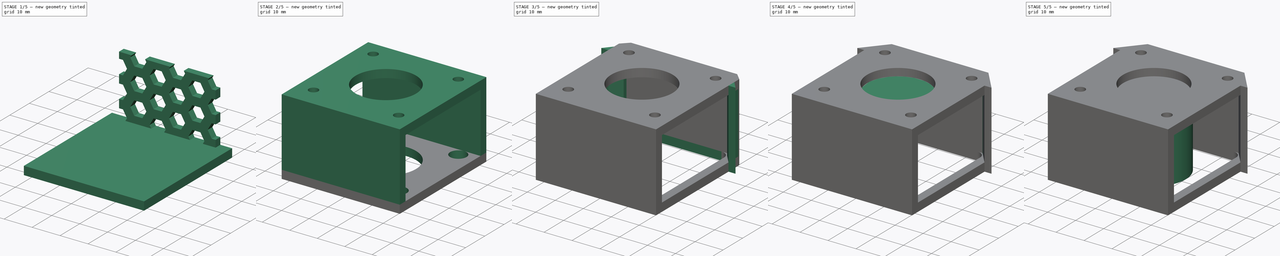
[diagram: build sequence overview — one tinted view per stage of 5, left to right]
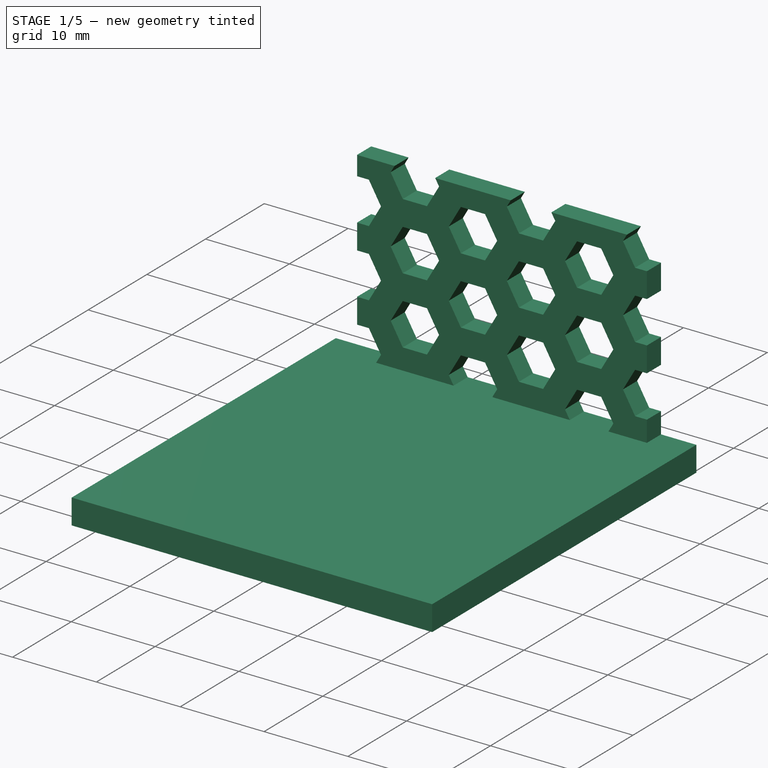
[diagram: stage 1 of 5 — iso view after this stage's code; geometry added in this stage tinted green]
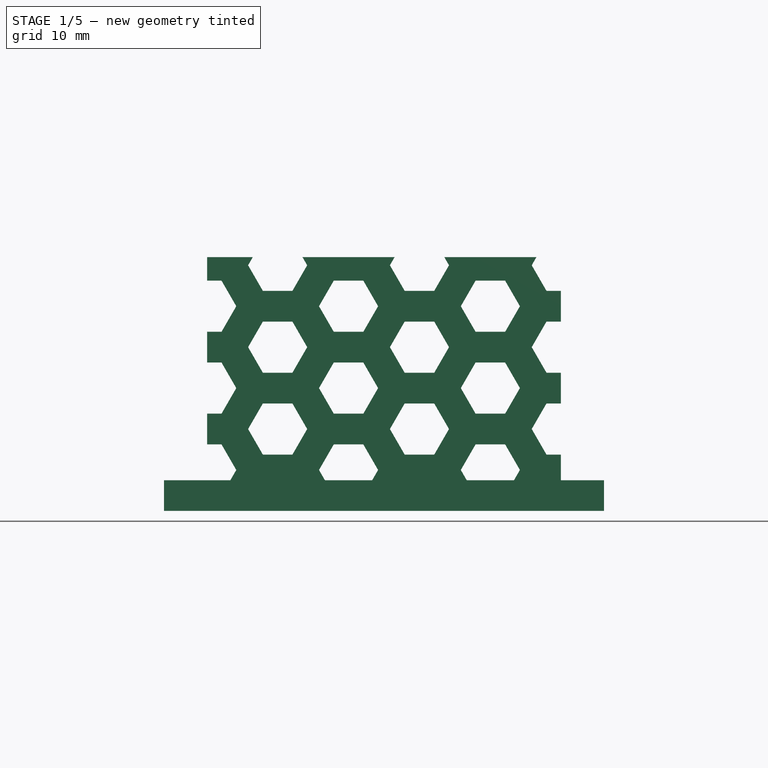
[diagram: stage 1 of 5 — front view after this stage's code; geometry added in this stage tinted green]
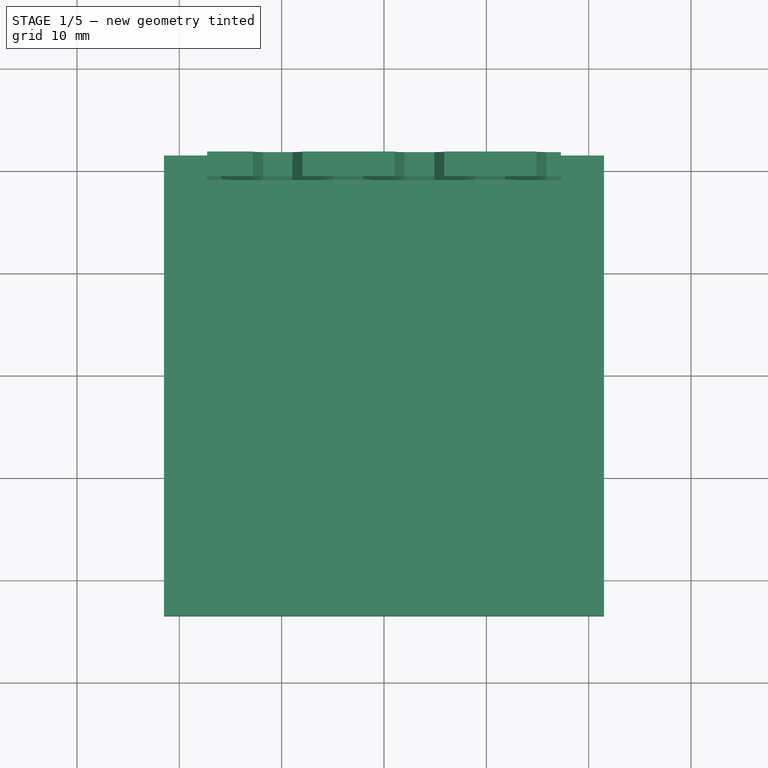
[diagram: stage 1 of 5 — top view after this stage's code; geometry added in this stage tinted green]
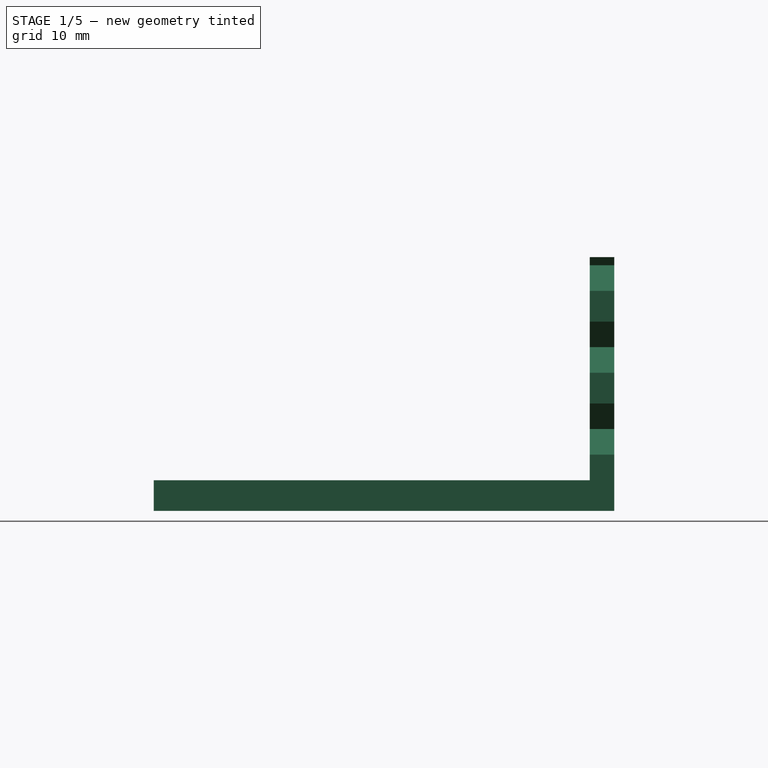
[diagram: stage 1 of 5 — right view after this stage's code; geometry added in this stage tinted green]
FCSTD DOCUMENT  (FreeCAD 0.15R4671 (Git))
Label: Halterung Schrittmotor v4 - Motorhalter
License: All rights reserved
LicenseURL: http://de.wikipedia.org/wiki/Alle_Rechte_vorbehalten
objects: Sketcher::SketchObject×18, PartDesign::Pad×11, PartDesign::Pocket×7, Part::Feature×1, Part::Extrusion×1, Part::MultiCommon×1, Part::MultiFuse×1, PartDesign::Chamfer×1
note: 59 computed .brp shape members not serialized (recipe doc carries the construction recipe); baked Part::Feature solids carry a one-line shape summary decoded from their .brp

FEATURE [Sketcher::SketchObject] Sketch
  sketch-geometry (4):
    g0: LineSegment StartX=-21.5 StartY=21.5 StartZ=0 EndX=21.5 EndY=21.5 EndZ=0
    g1: LineSegment StartX=21.5 StartY=21.5 StartZ=0 EndX=21.5 EndY=-23.5 EndZ=0
    g2: LineSegment StartX=21.5 StartY=-23.5 StartZ=0 EndX=-21.5 EndY=-23.5 EndZ=0
    g3: LineSegment StartX=-21.5 StartY=-23.5 StartZ=0 EndX=-21.5 EndY=21.5 EndZ=0
  constraints (12):
    c: Coincident(g0,g1)
    c: Coincident(g1,g2)
    c: Coincident(g2,g3)
    c: Coincident(g3,g0)
    c: Horizontal(g0)
    c: Horizontal(g2)
    c: Vertical(g1)
    c: Vertical(g3)
    c: DistanceY(g1) = -45
    c: Symmetric(g0,g0,g-2)
    c: DistanceY(g-1,g0) = 21.5
    c: DistanceX(g0) = 43
FEATURE [PartDesign::Pad] Pad
  Length = 3
  Length2 = 100
  Sketch = -> Sketch
  Type = 0
FEATURE [Sketcher::SketchObject] Sketch013
  Placement = pos=(0,19.1,0) rot=(0,0.707107,0.707107;3.14159rad)
  sketch-geometry (4):
    g0: LineSegment StartX=-17.287 StartY=24.8 StartZ=0 EndX=17.287 EndY=24.8 EndZ=0
    g1: LineSegment StartX=17.287 StartY=24.8 StartZ=0 EndX=17.287 EndY=3 EndZ=0
    g2: LineSegment StartX=17.287 StartY=3 StartZ=0 EndX=-17.287 EndY=3 EndZ=0
    g3: LineSegment StartX=-17.287 StartY=3 StartZ=0 EndX=-17.287 EndY=24.8 EndZ=0
  constraints (12):
    c: Coincident(g0,g1)
    c: Coincident(g1,g2)
    c: Coincident(g2,g3)
    c: Coincident(g3,g0)
    c: Horizontal(g0)
    c: Horizontal(g2)
    c: Vertical(g1)
    c: Vertical(g3)
    c: Symmetric(g1,g2,g-2)
    c: DistanceY(g-1,g1) = 3
    c: DistanceY(g1) = -21.8
    c: DistanceX(g0) = 34.574
FEATURE [PartDesign::Pad] Pad006
  Length = 2.4
  Length2 = 100
  Placement = pos=(0,19.1,0) rot=(0,0.707107,0.707107;3.14159rad)
  Sketch = -> Sketch013
  Type = 0
FEATURE [Part::Feature] Honeycomb
  Placement = pos=(0,19.1,0) rot=(1,0,0;1.5708rad)
  shape: bbox 102.8 x 2e-07 x 67 mm, 1 faces, 0 solids (baked)
FEATURE [Part::Extrusion] Extrude
  Base = -> Honeycomb
  Dir = (0,3,0)
  Solid = true
FEATURE [Part::MultiCommon] Common
  Shapes = -> [Pad006,Extrude]
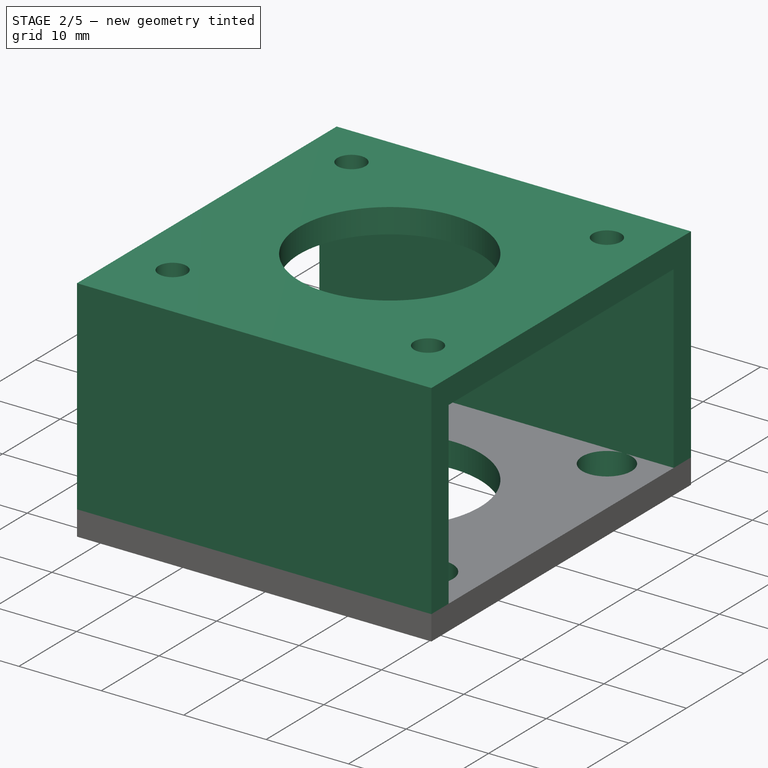
[diagram: stage 2 of 5 — iso view after this stage's code; geometry added in this stage tinted green]
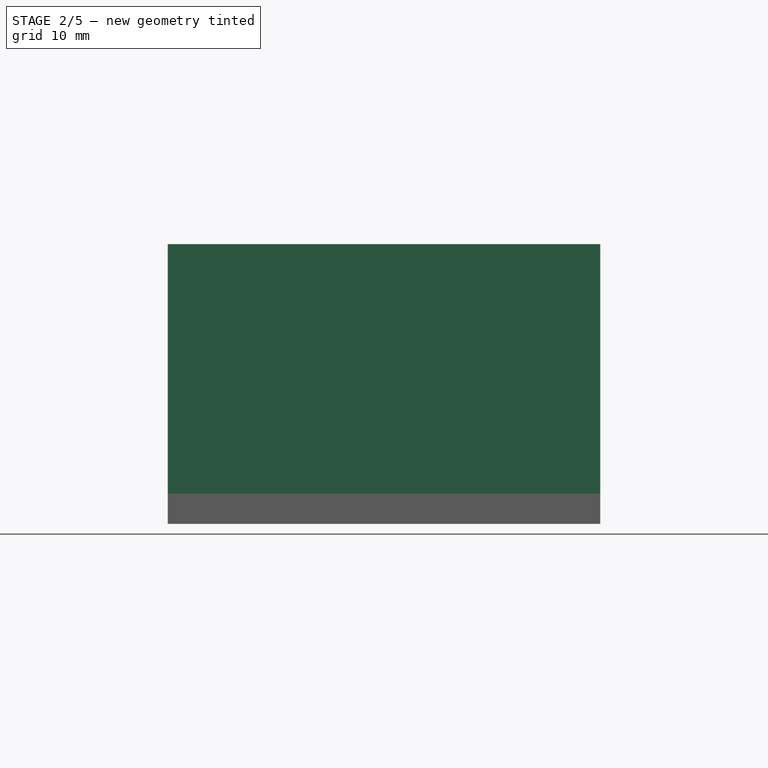
[diagram: stage 2 of 5 — front view after this stage's code; geometry added in this stage tinted green]
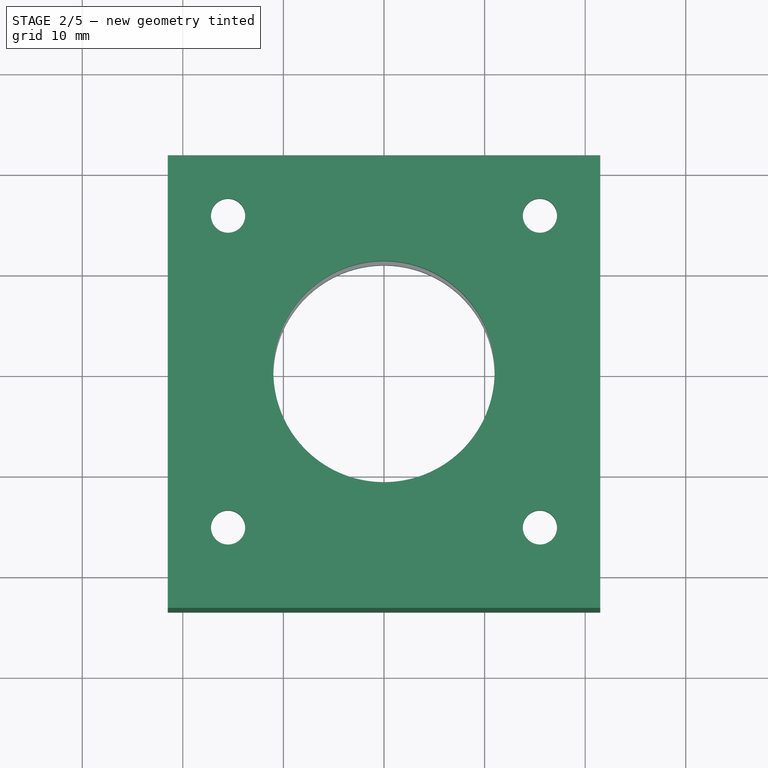
[diagram: stage 2 of 5 — top view after this stage's code; geometry added in this stage tinted green]
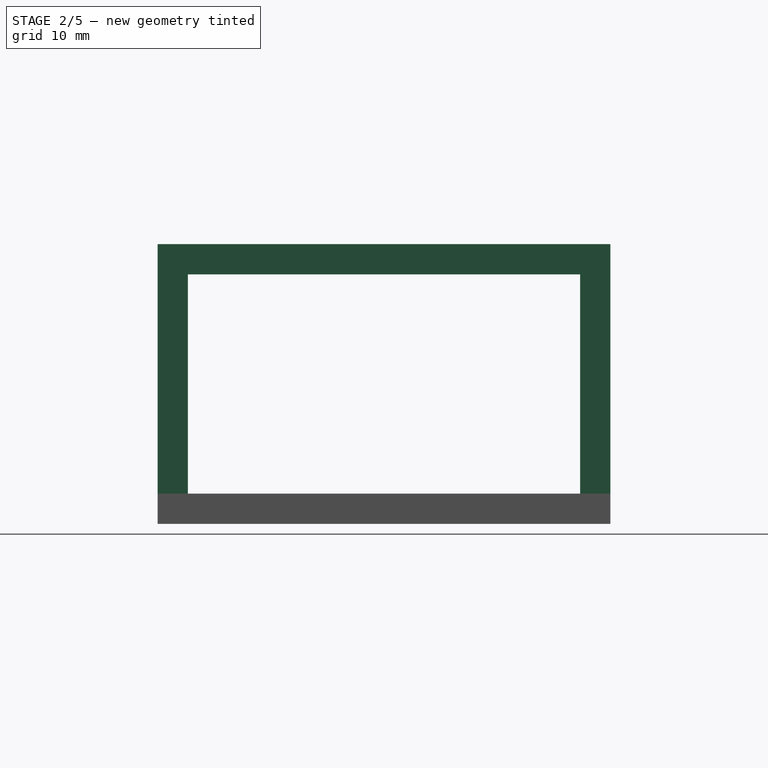
[diagram: stage 2 of 5 — right view after this stage's code; geometry added in this stage tinted green]
FEATURE [Sketcher::SketchObject] Sketch001
  ExternalGeometry = -> [Pad]
  Placement = pos=(0,0,3) rot=(0,0,1;0rad)
  Support = -> Pad [Face6]
  sketch-geometry (8):
    g0: LineSegment StartX=-21.5 StartY=21.5 StartZ=0 EndX=21.5 EndY=21.5 EndZ=0
    g1: LineSegment StartX=21.5 StartY=21.5 StartZ=0 EndX=21.5 EndY=18.5 EndZ=0
    g2: LineSegment StartX=21.5 StartY=18.5 StartZ=0 EndX=-21.5 EndY=18.5 EndZ=0
    g3: LineSegment StartX=-21.5 StartY=18.5 StartZ=0 EndX=-21.5 EndY=21.5 EndZ=0
    g4: LineSegment StartX=-21.5 StartY=-23.5 StartZ=0 EndX=21.5 EndY=-23.5 EndZ=0
    g5: LineSegment StartX=21.5 StartY=-23.5 StartZ=0 EndX=21.5 EndY=-20.5 EndZ=0
    g6: LineSegment StartX=21.5 StartY=-20.5 StartZ=0 EndX=-21.5 EndY=-20.5 EndZ=0
    g7: LineSegment StartX=-21.5 StartY=-20.5 StartZ=0 EndX=-21.5 EndY=-23.5 EndZ=0
  constraints (22):
    c: Coincident(g0,g1)
    c: Coincident(g1,g2)
    c: Coincident(g2,g3)
    c: Coincident(g3,g0)
    c: Horizontal(g0)
    c: Horizontal(g2)
    c: Vertical(g1)
    c: Vertical(g3)
    c: Coincident(g4,g5)
    c: Coincident(g5,g6)
    c: Coincident(g6,g7)
    c: Coincident(g7,g4)
    c: Horizontal(g4)
    c: Horizontal(g6)
    c: Vertical(g5)
    c: Vertical(g7)
    c: Coincident(g0,g-3)
    c: Equal(g1,g5)
    c: DistanceY(g5) = 3
    c: Coincident(g0,g-3)
    c: Coincident(g4,g-4)
    c: Coincident(g-4,g4)
FEATURE [PartDesign::Pad] Pad001
  Length = 21.8
  Length2 = 100
  Sketch = -> Sketch001
  Type = 0
FEATURE [Sketcher::SketchObject] Sketch002
  ExternalGeometry = -> [Pad001]
  Placement = pos=(0,0,24.8) rot=(0,0,1;0rad)
  Support = -> Pad001 [Face16]
  sketch-geometry (4):
    g0: LineSegment StartX=-21.5 StartY=21.5 StartZ=0 EndX=21.5 EndY=21.5 EndZ=0
    g1: LineSegment StartX=21.5 StartY=21.5 StartZ=0 EndX=21.5 EndY=-23.5 EndZ=0
    g2: LineSegment StartX=21.5 StartY=-23.5 StartZ=0 EndX=-21.5 EndY=-23.5 EndZ=0
    g3: LineSegment StartX=-21.5 StartY=-23.5 StartZ=0 EndX=-21.5 EndY=21.5 EndZ=0
  constraints (10):
    c: Coincident(g0,g1)
    c: Coincident(g1,g2)
    c: Coincident(g2,g3)
    c: Coincident(g3,g0)
    c: Horizontal(g0)
    c: Horizontal(g2)
    c: Vertical(g1)
    c: Vertical(g3)
    c: Coincident(g0,g-3)
    c: Coincident(g1,g-4)
FEATURE [PartDesign::Pad] Pad002
  Length = 3
  Length2 = 100
  Sketch = -> Sketch002
  Type = 0
FEATURE [Sketcher::SketchObject] Sketch003
  Placement = pos=(0,0,27.8) rot=(0,0,1;0rad)
  Support = -> Pad002 [Face19]
  sketch-geometry (8):
    g0: LineSegment [constr] StartX=-15.5 StartY=15.5 StartZ=0 EndX=15.5 EndY=15.5 EndZ=0
    g1: LineSegment [constr] StartX=15.5 StartY=15.5 StartZ=0 EndX=15.5 EndY=-15.5 EndZ=0
    g2: LineSegment [constr] StartX=15.5 StartY=-15.5 StartZ=0 EndX=-15.5 EndY=-15.5 EndZ=0
    g3: LineSegment [constr] StartX=-15.5 StartY=-15.5 StartZ=0 EndX=-15.5 EndY=15.5 EndZ=0
    g4: Circle CenterX=-15.5 CenterY=15.5 CenterZ=0 NormalX=0 NormalY=0 NormalZ=1 Radius=1.7
    g5: Circle CenterX=15.5 CenterY=15.5 CenterZ=0 NormalX=0 NormalY=0 NormalZ=1 Radius=1.7
    g6: Circle CenterX=15.5 CenterY=-15.5 CenterZ=0 NormalX=0 NormalY=0 NormalZ=1 Radius=1.7
    g7: Circle CenterX=-15.5 CenterY=-15.5 CenterZ=0 NormalX=0 NormalY=0 NormalZ=1 Radius=1.7
  constraints (20):
    c: Coincident(g0,g1)
    c: Coincident(g1,g2)
    c: Coincident(g2,g3)
    c: Coincident(g3,g0)
    c: Horizontal(g0)
    c: Horizontal(g2)
    c: Vertical(g1)
    c: Vertical(g3)
    c: Equal(g1,g2)
    c: DistanceX(g0) = 31
    c: Symmetric(g0,g0,g-2)
    c: Symmetric(g0,g1,g-1)
    c: Coincident(g4,g0)
    c: Coincident(g5,g0)
    c: Coincident(g6,g1)
    c: Coincident(g7,g2)
    c: Equal(g7,g5)
    c: Equal(g5,g4)
    c: Equal(g4,g6)
    c: Radius(g6) = 1.7
FEATURE [PartDesign::Pocket] Pocket
  Length = 5
  Sketch = -> Sketch003
  Type = 1
FEATURE [Sketcher::SketchObject] Sketch004
  ExternalGeometry = -> [Pocket]
  Placement = pos=(0,0,0) rot=(1,0,0;3.14159rad)
  Support = -> Pocket [Face1]
  sketch-geometry (5):
    g0: Circle CenterX=-15.5 CenterY=15.5 CenterZ=0 NormalX=0 NormalY=0 NormalZ=1 Radius=3
    g1: Circle CenterX=15.5 CenterY=15.5 CenterZ=0 NormalX=0 NormalY=0 NormalZ=1 Radius=3
    g2: Circle CenterX=15.5 CenterY=-15.5 CenterZ=0 NormalX=0 NormalY=0 NormalZ=1 Radius=3
    g3: Circle CenterX=-15.5 CenterY=-15.5 CenterZ=0 NormalX=0 NormalY=0 NormalZ=1 Radius=3
    g4: LineSegment [constr] StartX=-21.5 StartY=-18.5 StartZ=0 EndX=21.5 EndY=-18.5 EndZ=0
  constraints (12):
    c: Coincident(g0,g-5)
    c: Coincident(g1,g-3)
    c: Coincident(g2,g-4)
    c: Coincident(g3,g-6)
    c: Equal(g3,g0)
    c: Equal(g0,g1)
    c: Equal(g1,g2)
    c: PointOnObject(g4,g-7)
    c: PointOnObject(g4,g-8)
    c: Horizontal(g4)
    c: Tangent(g4,g2)
    c: DistanceY(g4,g-8) = -3
FEATURE [PartDesign::Pocket] Pocket001
  Length = 3
  Sketch = -> Sketch004
  Type = 0
FEATURE [Sketcher::SketchObject] Sketch005
  Placement = pos=(0,0,0) rot=(1,0,0;3.14159rad)
  Support = -> Pocket001 [Face1]
  sketch-geometry (1):
    g0: Circle CenterX=0 CenterY=0 CenterZ=0 NormalX=0 NormalY=0 NormalZ=1 Radius=11
  constraints (2):
    c: Coincident(g0,g-1)
    c: Radius(g0) = 11
FEATURE [PartDesign::Pocket] Pocket002
  Length = 3
  Sketch = -> Sketch005
  Type = 1
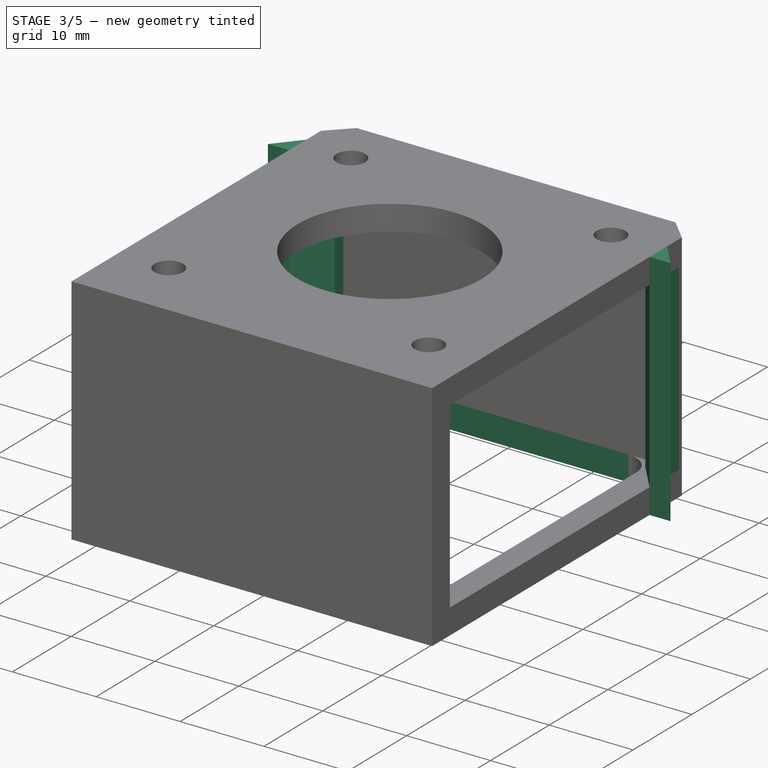
[diagram: stage 3 of 5 — iso view after this stage's code; geometry added in this stage tinted green]
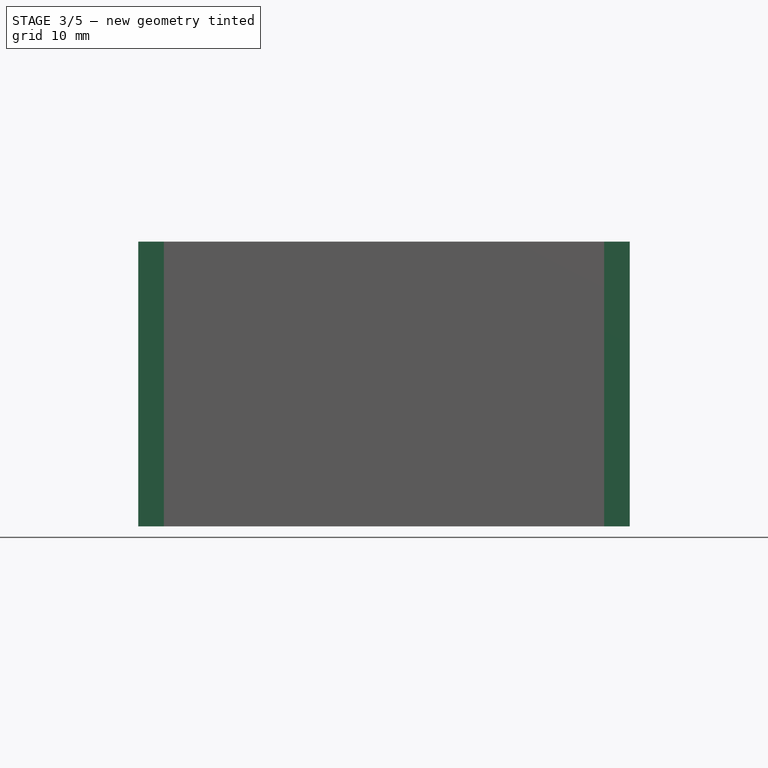
[diagram: stage 3 of 5 — front view after this stage's code; geometry added in this stage tinted green]
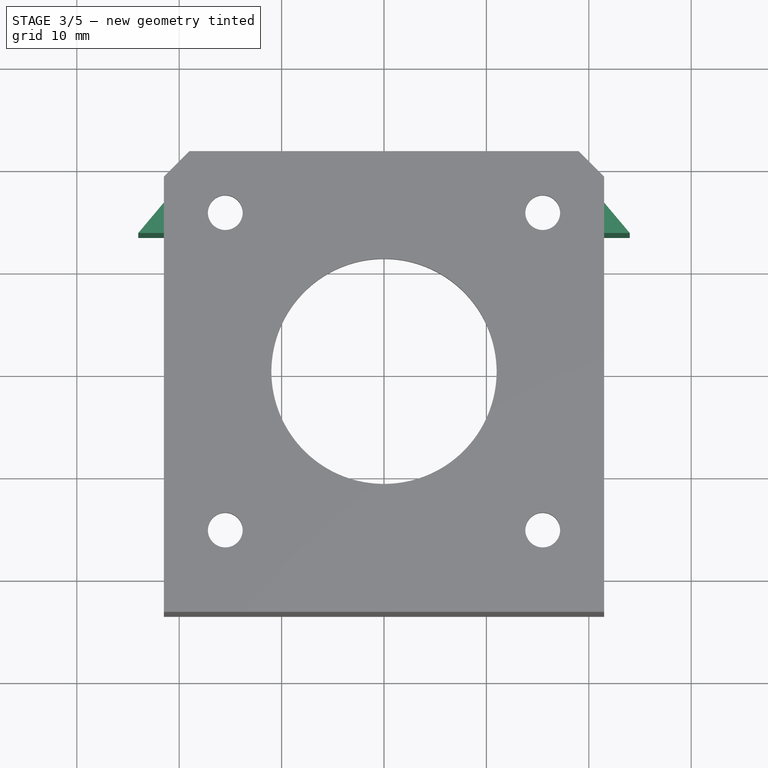
[diagram: stage 3 of 5 — top view after this stage's code; geometry added in this stage tinted green]
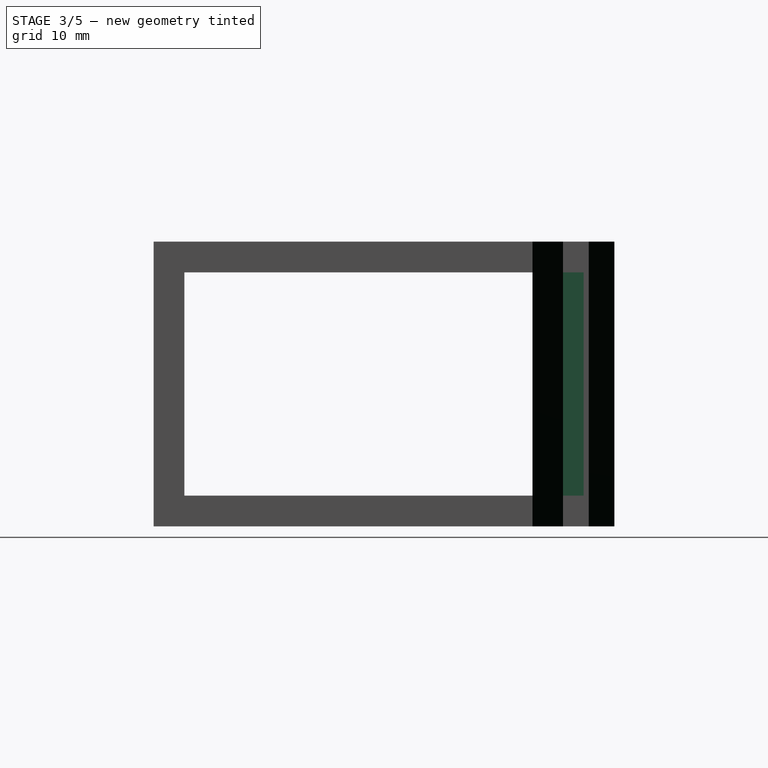
[diagram: stage 3 of 5 — right view after this stage's code; geometry added in this stage tinted green]
FEATURE [Sketcher::SketchObject] Sketch006
  ExternalGeometry = -> [Pocket002]
  Placement = pos=(0,0,3) rot=(0,0,1;0rad)
  Support = -> Pocket002 [Face13]
  sketch-geometry (13):
    g0: LineSegment StartX=-21.5 StartY=18.5 StartZ=0 EndX=-18.5 EndY=18.5 EndZ=0
    g1: LineSegment [constr] StartX=-18.5 StartY=18.5 StartZ=0 EndX=-18.5 EndY=13.5 EndZ=0
    g2: LineSegment [constr] StartX=-18.5 StartY=13.5 StartZ=0 EndX=-21.5 EndY=13.5 EndZ=0
    g3: LineSegment StartX=21.5 StartY=18.5 StartZ=0 EndX=18.5 EndY=18.5 EndZ=0
    g4: LineSegment [constr] StartX=18.5 StartY=18.5 StartZ=0 EndX=18.5 EndY=13.5 EndZ=0
    g5: LineSegment [constr] StartX=18.5 StartY=13.5 StartZ=0 EndX=21.5 EndY=13.5 EndZ=0
    g6: LineSegment [constr] StartX=21.5 StartY=13.5 StartZ=0 EndX=21.5 EndY=18.5 EndZ=0
    g7: LineSegment StartX=-21.5 StartY=18.5 StartZ=0 EndX=-21.5 EndY=13.5 EndZ=0
    g8: LineSegment StartX=21.5 StartY=18.5 StartZ=0 EndX=21.5 EndY=13.5 EndZ=0
    g9: LineSegment StartX=18.5 StartY=18.5 StartZ=0 EndX=18.5 EndY=17.0753 EndZ=0
    g10: LineSegment StartX=18.5 StartY=17.0753 StartZ=0 EndX=21.5 EndY=13.5 EndZ=0
    g11: LineSegment StartX=-18.5 StartY=18.5 StartZ=0 EndX=-18.5 EndY=17.0753 EndZ=0
    g12: LineSegment StartX=-18.5 StartY=17.0753 StartZ=0 EndX=-21.5 EndY=13.5 EndZ=0
  constraints (37):
    c: Coincident(g0,g1)
    c: Coincident(g1,g2)
    c: Horizontal(g0)
    c: Horizontal(g2)
    c: Vertical(g1)
    c: Coincident(g0,g-3)
    c: Coincident(g3,g4)
    c: Coincident(g4,g5)
    c: Coincident(g5,g6)
    c: Coincident(g6,g3)
    c: Horizontal(g3)
    c: Horizontal(g5)
    c: Vertical(g4)
    c: Vertical(g6)
    c: Coincident(g3,g-4)
    c: Equal(g2,g5)
    c: DistanceX(g5) = 3
    c: Equal(g6,g1)
    c: Vertical(g7)
    c: Coincident(g7,g0)
    c: Coincident(g3,g8)
    c: Vertical(g8)
    c: Equal(g5,g2)
    c: DistanceX(g0,g0) = -3
    c: DistanceY(g4) = -5
    c: Coincident(g3,g9)
    c: Coincident(g9,g10)
    c: Coincident(g10,g5)
    c: Vertical(g9)
    c: Coincident(g8,g5)
    c: Angle(g6,g10) = 0.698132
    c: Coincident(g7,g2)
    c: Coincident(g0,g11)
    c: Coincident(g11,g12)
    c: Coincident(g12,g2)
    c: Vertical(g11)
    c: Angle(g12,g7) = 0.698132
FEATURE [PartDesign::Pad] Pad003
  Length = 21.8
  Length2 = 100
  Sketch = -> Sketch006
  Type = 2
  UpToFace = -> Pocket002 [Face25]
FEATURE [Sketcher::SketchObject] Sketch007
  ExternalGeometry = -> [Pad003]
  Placement = pos=(0,0,0) rot=(1,0,0;3.14159rad)
  Support = -> Pad003 [Face1]
  sketch-geometry (6):
    g0: LineSegment StartX=-21.5 StartY=-16.4794 StartZ=0 EndX=-24 EndY=-13.5 EndZ=0
    g1: LineSegment StartX=-24 StartY=-13.5 StartZ=0 EndX=-21.5 EndY=-13.5 EndZ=0
    g2: LineSegment StartX=-21.5 StartY=-13.5 StartZ=0 EndX=-21.5 EndY=-16.4794 EndZ=0
    g3: LineSegment StartX=21.5 StartY=-13.5 StartZ=0 EndX=24 EndY=-13.5 EndZ=0
    g4: LineSegment StartX=24 StartY=-13.5 StartZ=0 EndX=21.5 EndY=-16.4794 EndZ=0
    g5: LineSegment StartX=21.5 StartY=-16.4794 StartZ=0 EndX=21.5 EndY=-13.5 EndZ=0
  constraints (18):
    c: Coincident(g0,g1)
    c: Horizontal(g1)
    c: Coincident(g1,g2)
    c: Coincident(g2,g0)
    c: Vertical(g2)
    c: Angle(g2,g0) = 0.698132
    c: DistanceX(g1) = 2.5
    c: PointOnObject(g1,g-4)
    c: DistanceY(g1,g-4) = -8
    c: Horizontal(g3)
    c: Coincident(g3,g4)
    c: Coincident(g4,g5)
    c: Coincident(g5,g3)
    c: Vertical(g5)
    c: Equal(g3,g1)
    c: Angle(g4,g5) = 0.698132
    c: PointOnObject(g3,g1)
    c: PointOnObject(g3,g-3)
FEATURE [PartDesign::Pad] Pad004
  Length = 27.8
  Length2 = 100
  Reversed = true
  Sketch = -> Sketch007
  Type = 0
FEATURE [Sketcher::SketchObject] Sketch008
  ExternalGeometry = -> [Pad004]
  Placement = pos=(0,0,0) rot=(1,0,0;3.14159rad)
  Support = -> Pad004 [Face3]
  sketch-geometry (6):
    g0: LineSegment StartX=-21.5 StartY=-19 StartZ=0 EndX=-19 EndY=-21.5 EndZ=0
    g1: LineSegment StartX=-19 StartY=-21.5 StartZ=0 EndX=-21.5 EndY=-21.5 EndZ=0
    g2: LineSegment StartX=-21.5 StartY=-21.5 StartZ=0 EndX=-21.5 EndY=-19 EndZ=0
    g3: LineSegment StartX=19 StartY=-21.5 StartZ=0 EndX=21.5 EndY=-19 EndZ=0
    g4: LineSegment StartX=21.5 StartY=-19 StartZ=0 EndX=21.5 EndY=-21.5 EndZ=0
    g5: LineSegment StartX=21.5 StartY=-21.5 StartZ=0 EndX=19 EndY=-21.5 EndZ=0
  constraints (16):
    c: Coincident(g0,g1)
    c: Horizontal(g1)
    c: Coincident(g1,g2)
    c: Vertical(g2)
    c: Coincident(g0,g2)
    c: Equal(g2,g1)
    c: DistanceX(g1) = -2.5
    c: Coincident(g1,g-3)
    c: Coincident(g3,g4)
    c: Vertical(g4)
    c: Coincident(g4,g5)
    c: Coincident(g5,g3)
    c: Horizontal(g5)
    c: Equal(g5,g4)
    c: Equal(g5,g2)
    c: Coincident(g4,g-3)
FEATURE [PartDesign::Pocket] Pocket003
  Length = 5
  Sketch = -> Sketch008
  Type = 1
FEATURE [Sketcher::SketchObject] Sketch009
  ExternalGeometry = -> [Pocket003]
  Placement = pos=(0,0,0) rot=(1,0,0;3.14159rad)
  Support = -> Pocket003 [Face2]
  sketch-geometry (16):
    g0: LineSegment [constr] StartX=-18.5 StartY=-18.5 StartZ=0 EndX=18.5 EndY=-18.5 EndZ=0
    g1: LineSegment [constr] StartX=18.5 StartY=-18.5 StartZ=0 EndX=18.5 EndY=18.5 EndZ=0
    g2: LineSegment [constr] StartX=18.5 StartY=18.5 StartZ=0 EndX=-18.5 EndY=18.5 EndZ=0
    g3: LineSegment [constr] StartX=-18.5 StartY=18.5 StartZ=0 EndX=-18.5 EndY=-18.5 EndZ=0
    g4: ArcOfCircle CenterX=-15.5 CenterY=15.5 CenterZ=0 NormalX=0 NormalY=0 NormalZ=1 Radius=3 StartAngle=1.5708 EndAngle=3.14183
    g5: ArcOfCircle CenterX=15.5 CenterY=15.5 CenterZ=0 NormalX=0 NormalY=0 NormalZ=1 Radius=3 StartAngle=6.28319 EndAngle=7.85398
    g6: ArcOfCircle CenterX=-15.5 CenterY=-15.5 CenterZ=0 NormalX=0 NormalY=0 NormalZ=1 Radius=3 StartAngle=3.14135 EndAngle=4.71239
    g7: ArcOfCircle CenterX=15.5 CenterY=-15.5 CenterZ=0 NormalX=0 NormalY=0 NormalZ=1 Radius=3 StartAngle=4.71239 EndAngle=6.28319
    g8: LineSegment [constr] StartX=-15.5 StartY=15.5 StartZ=0 EndX=15.5 EndY=15.5 EndZ=0
    g9: LineSegment [constr] StartX=15.5 StartY=15.5 StartZ=0 EndX=15.5 EndY=-15.5 EndZ=0
    g10: LineSegment [constr] StartX=15.5 StartY=-15.5 StartZ=0 EndX=-15.5 EndY=-15.5 EndZ=0
    g11: LineSegment [constr] StartX=-15.5 StartY=-15.5 StartZ=0 EndX=-15.5 EndY=15.5 EndZ=0
    g12: LineSegment StartX=-15.5 StartY=18.5 StartZ=0 EndX=15.5 EndY=18.5 EndZ=0
    g13: LineSegment StartX=18.5 StartY=15.5 StartZ=0 EndX=18.5 EndY=-15.5 EndZ=0
    g14: LineSegment StartX=-15.5 StartY=-18.5 StartZ=0 EndX=15.5 EndY=-18.5 EndZ=0
    g15: LineSegment StartX=-18.5 StartY=-15.4993 StartZ=0 EndX=-18.5 EndY=15.4993 EndZ=0
  constraints (46):
    c: Coincident(g0,g1)
    c: Coincident(g1,g2)
    c: Coincident(g2,g3)
    c: Coincident(g3,g0)
    c: Horizontal(g0)
    c: Horizontal(g2)
    c: Vertical(g1)
    c: Vertical(g3)
    c: Tangent(g1,g-3)
    c: Tangent(g2,g-3)
    c: Symmetric(g1,g0,g-1)
    c: Symmetric(g0,g0,g-2)
    c: PointOnObject(g4,g3)
    c: PointOnObject(g4,g2)
    c: PointOnObject(g5,g2)
    c: PointOnObject(g5,g1)
    c: PointOnObject(g6,g3)
    c: PointOnObject(g6,g0)
    c: PointOnObject(g7,g1)
    c: PointOnObject(g7,g0)
    c: Equal(g6,g7)
    c: Equal(g7,g5)
    c: Equal(g5,g4)
    c: Equal(g4,g-3)
    c: Coincident(g8,g9)
    c: Coincident(g9,g10)
    c: Coincident(g10,g11)
    c: Coincident(g11,g8)
    c: Horizontal(g8)
    c: Horizontal(g10)
    c: Vertical(g9)
    c: Vertical(g11)
    c: Coincident(g8,g4)
    c: Coincident(g9,g7)
    c: Coincident(g8,g5)
    c: Coincident(g8,g-3)
    c: Symmetric(g7,g5,g-1)
    c: Coincident(g6,g10)
    c: Coincident(g12,g4)
    c: Coincident(g5,g12)
    c: Coincident(g7,g13)
    c: Coincident(g5,g13)
    c: Coincident(g7,g14)
    c: Coincident(g6,g14)
    c: Coincident(g4,g15)
    c: Coincident(g6,g15)
FEATURE [PartDesign::Pocket] Pocket004
  Length = 3
  Sketch = -> Sketch009
  Type = 0
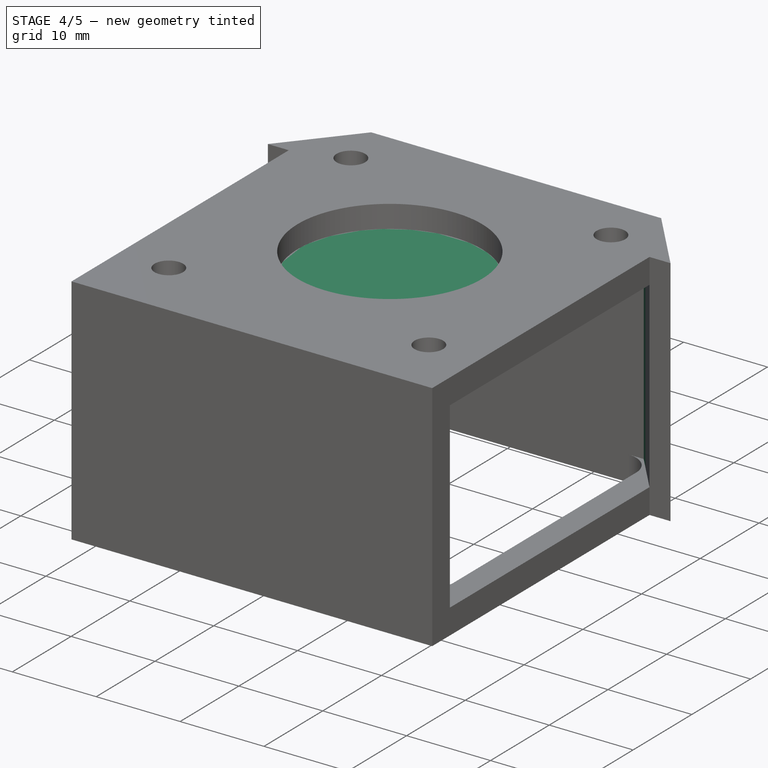
[diagram: stage 4 of 5 — iso view after this stage's code; geometry added in this stage tinted green]
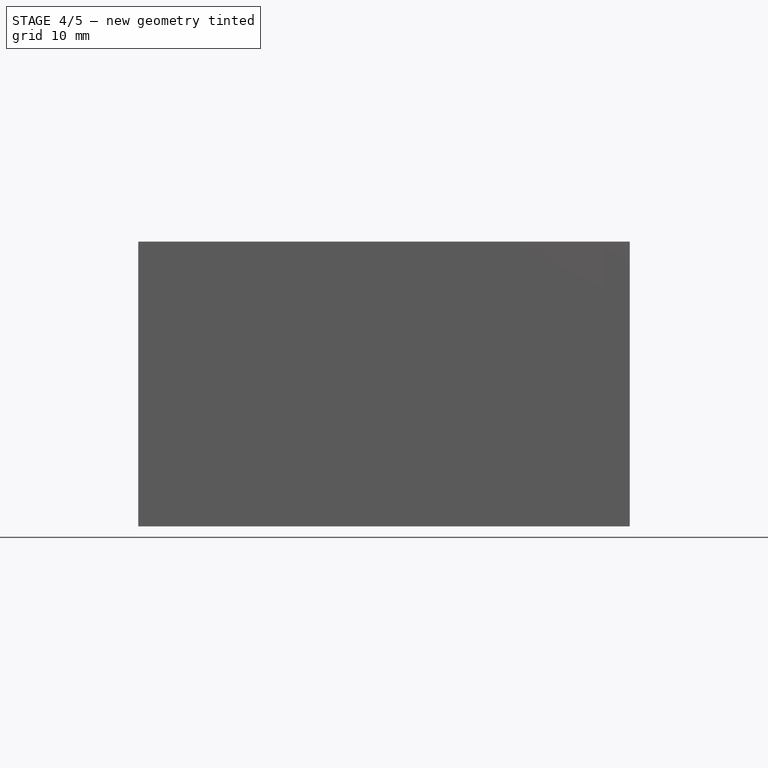
[diagram: stage 4 of 5 — front view after this stage's code; geometry added in this stage tinted green]
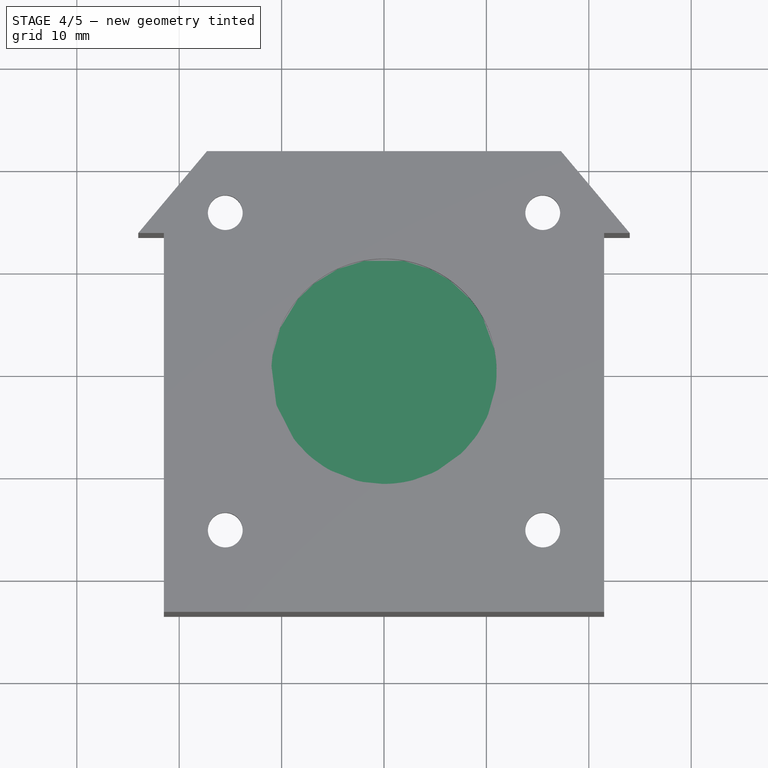
[diagram: stage 4 of 5 — top view after this stage's code; geometry added in this stage tinted green]
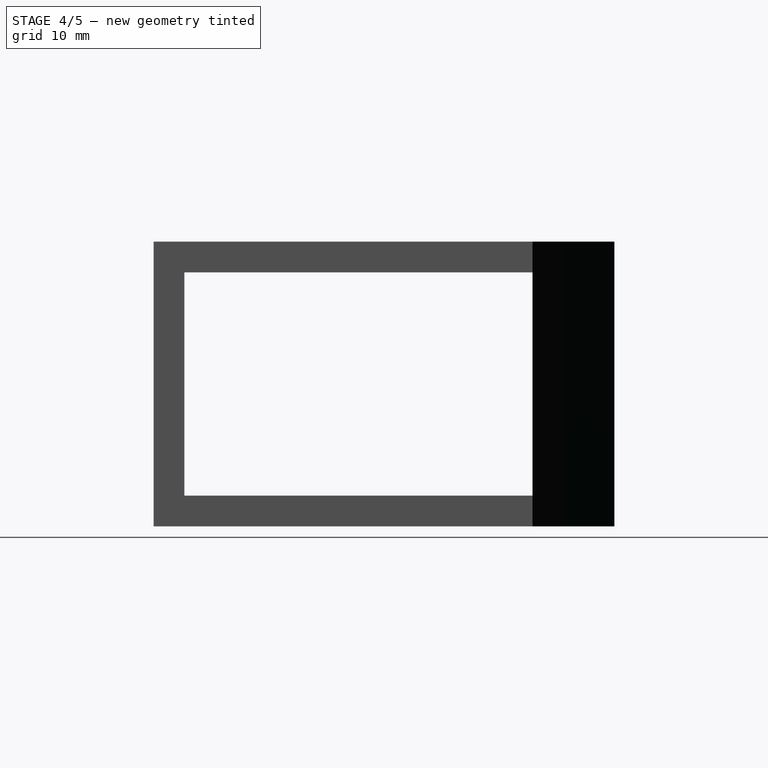
[diagram: stage 4 of 5 — right view after this stage's code; geometry added in this stage tinted green]
FEATURE [Sketcher::SketchObject] Sketch010
  ExternalGeometry = -> [Pocket004]
  Placement = pos=(0,0,24.8) rot=(1,0,0;3.14159rad)
  Support = -> Pocket004 [Face53]
  sketch-geometry (6):
    g0: LineSegment StartX=18.5 StartY=-17.0753 StartZ=0 EndX=17.3045 EndY=-18.5 EndZ=0
    g1: LineSegment StartX=17.3045 StartY=-18.5 StartZ=0 EndX=18.5 EndY=-18.5 EndZ=0
    g2: LineSegment StartX=18.5 StartY=-18.5 StartZ=0 EndX=18.5 EndY=-17.0753 EndZ=0
    g3: LineSegment StartX=-18.5 StartY=-17.0753 StartZ=0 EndX=-17.3045 EndY=-18.5 EndZ=0
    g4: LineSegment StartX=-17.3045 StartY=-18.5 StartZ=0 EndX=-18.5 EndY=-18.5 EndZ=0
    g5: LineSegment StartX=-18.5 StartY=-18.5 StartZ=0 EndX=-18.5 EndY=-17.0753 EndZ=0
  constraints (14):
    c: Coincident(g0,g1)
    c: Horizontal(g1)
    c: Coincident(g1,g2)
    c: Coincident(g2,g0)
    c: Coincident(g-4,g0)
    c: Coincident(g-3,g1)
    c: Parallel(g0,g-4)
    c: Coincident(g-6,g3)
    c: Coincident(g3,g4)
    c: Horizontal(g4)
    c: Coincident(g4,g5)
    c: Coincident(g5,g3)
    c: Coincident(g-6,g4)
    c: Parallel(g-5,g3)
FEATURE [PartDesign::Pad] Pad005
  Length = 21.8
  Length2 = 100
  Sketch = -> Sketch010
  Type = 0
FEATURE [Sketcher::SketchObject] Sketch011
  ExternalGeometry = -> [Pad005]
  Placement = pos=(0,0,0) rot=(1,0,0;3.14159rad)
  Support = -> Pad005 [Face2]
  sketch-geometry (6):
    g0: LineSegment StartX=-21.5 StartY=-16.4794 StartZ=0 EndX=-17.2872 EndY=-21.5 EndZ=0
    g1: LineSegment StartX=-17.2872 StartY=-21.5 StartZ=0 EndX=17.2872 EndY=-21.5 EndZ=0
    g2: LineSegment StartX=17.2872 StartY=-21.5 StartZ=0 EndX=21.5 EndY=-16.4794 EndZ=0
    g3: LineSegment StartX=21.5 StartY=-16.4794 StartZ=0 EndX=21.5 EndY=-23.5 EndZ=0
    g4: LineSegment StartX=21.5 StartY=-23.5 StartZ=0 EndX=-21.5 EndY=-23.5 EndZ=0
    g5: LineSegment StartX=-21.5 StartY=-23.5 StartZ=0 EndX=-21.5 EndY=-16.4794 EndZ=0
  constraints (16):
    c: Coincident(g-3,g0)
    c: PointOnObject(g0,g-4)
    c: Coincident(g0,g1)
    c: Horizontal(g1)
    c: Coincident(g1,g2)
    c: Coincident(g2,g-5)
    c: Coincident(g2,g3)
    c: Vertical(g3)
    c: Coincident(g3,g4)
    c: Horizontal(g4)
    c: Coincident(g4,g5)
    c: Coincident(g5,g0)
    c: Vertical(g5)
    c: Parallel(g2,g-5)
    c: Parallel(g-3,g0)
    c: DistanceY(g4,g0) = 2
FEATURE [PartDesign::Pocket] Pocket005
  Length = 5
  Sketch = -> Sketch011
  Type = 1
FEATURE [Sketcher::SketchObject] Sketch012
  ExternalGeometry = -> [Pocket005]
  Placement = pos=(0,21.5,0) rot=(0,0.707107,0.707107;3.14159rad)
  Support = -> Pocket005 [Face4]
  sketch-geometry (4):
    g0: LineSegment StartX=-17.2872 StartY=24.8 StartZ=0 EndX=17.2872 EndY=24.8 EndZ=0
    g1: LineSegment StartX=17.2872 StartY=24.8 StartZ=0 EndX=17.2872 EndY=3 EndZ=0
    g2: LineSegment StartX=17.2872 StartY=3 StartZ=0 EndX=-17.2872 EndY=3 EndZ=0
    g3: LineSegment StartX=-17.2872 StartY=3 StartZ=0 EndX=-17.2872 EndY=24.8 EndZ=0
  constraints (10):
    c: Coincident(g0,g1)
    c: Coincident(g1,g2)
    c: Coincident(g2,g3)
    c: Coincident(g3,g0)
    c: Horizontal(g0)
    c: Horizontal(g2)
    c: Vertical(g1)
    c: Vertical(g3)
    c: Coincident(g0,g-3)
    c: Coincident(g1,g-4)
FEATURE [PartDesign::Pocket] Pocket006
  Length = 2.4
  Sketch = -> Sketch012
  Type = 0
FEATURE [Part::MultiFuse] Fusion  label="Motorhalter"
  Shapes = -> [Pocket006,Common]
FEATURE [Sketcher::SketchObject] Sketch014
  ExternalGeometry = -> [Fusion]
  Placement = pos=(0,0,24.8) rot=(1,0,0;3.14159rad)
  Support = -> Fusion [Face155]
  sketch-geometry (1):
    g0: Circle CenterX=0 CenterY=0 CenterZ=0 NormalX=0 NormalY=0 NormalZ=1 Radius=11
  constraints (1):
    c: Equal(g0,g-3)
FEATURE [PartDesign::Pad] Pad007
  Length = 0.3
  Length2 = 100
  Reversed = true
  Sketch = -> Sketch014
  Type = 0
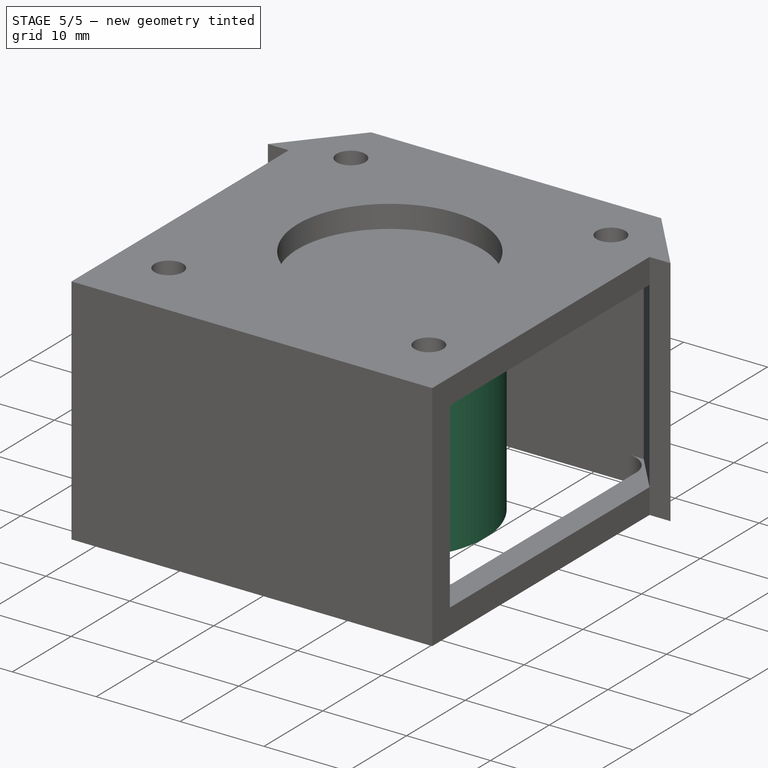
[diagram: stage 5 of 5 — iso view after this stage's code; geometry added in this stage tinted green]
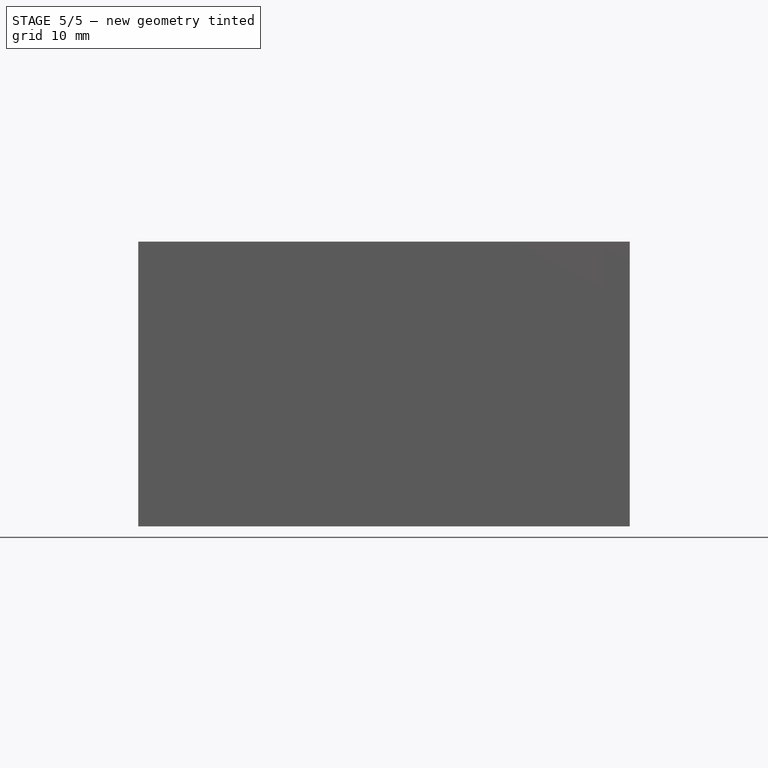
[diagram: stage 5 of 5 — front view after this stage's code; geometry added in this stage tinted green]
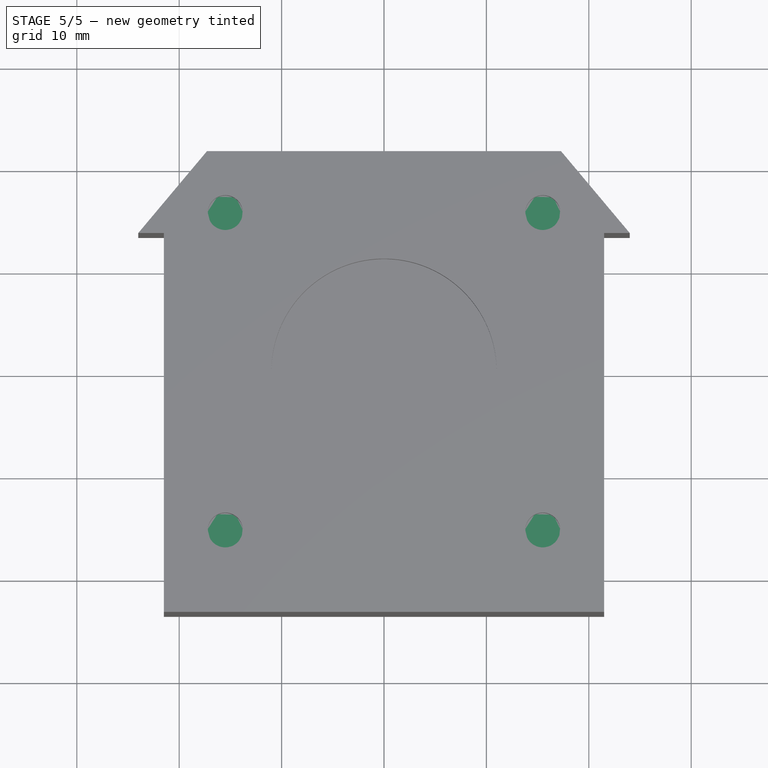
[diagram: stage 5 of 5 — top view after this stage's code; geometry added in this stage tinted green]
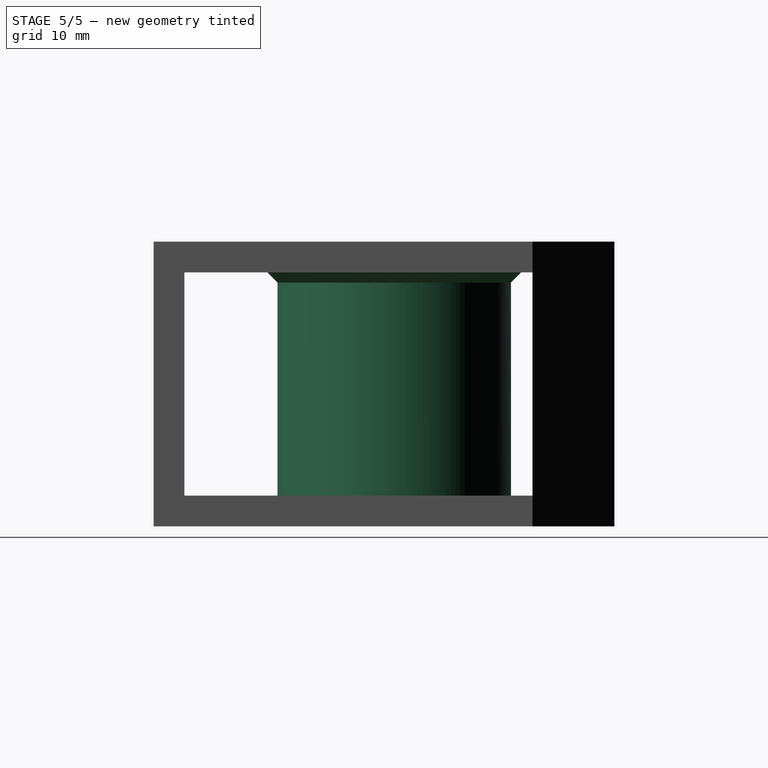
[diagram: stage 5 of 5 — right view after this stage's code; geometry added in this stage tinted green]
FEATURE [Sketcher::SketchObject] Sketch015
  Placement = pos=(0,0,24.8) rot=(1,0,0;3.14159rad)
  Support = -> Pad007 [Face167]
  sketch-geometry (2):
    g0: Circle CenterX=0 CenterY=0 CenterZ=0 NormalX=0 NormalY=0 NormalZ=1 Radius=11
    g1: Circle CenterX=0 CenterY=0 CenterZ=0 NormalX=0 NormalY=0 NormalZ=1 Radius=11.4
  constraints (4):
    c: Coincident(g0,g-1)
    c: Coincident(g1,g-1)
    c: Radius(g0) = 11
    c: Radius(g1) = 11.4
FEATURE [PartDesign::Pad] Pad008
  Length = 24.8
  Length2 = 100
  Sketch = -> Sketch015
  Type = 0
FEATURE [Sketcher::SketchObject] Sketch016
  Placement = pos=(0,0,0) rot=(1,0,0;3.14159rad)
  Support = -> Pad008 [Face168]
  sketch-geometry (1):
    g0: Circle CenterX=0 CenterY=0 CenterZ=0 NormalX=0 NormalY=0 NormalZ=1 Radius=11
  constraints (2):
    c: Coincident(g0,g-1)
    c: Radius(g0) = 11
FEATURE [PartDesign::Pad] Pad009  label="Motorhalter druckbar"
  Length = 0.3
  Length2 = 100
  Reversed = true
  Sketch = -> Sketch016
  Type = 0
FEATURE [PartDesign::Chamfer] Chamfer  label="Druckbar"
  Base = -> Pad009 [Edge441]
  Size = 1
FEATURE [Sketcher::SketchObject] Sketch017
  ExternalGeometry = -> [Chamfer]
  Placement = pos=(0,0,24.8) rot=(1,0,0;3.14159rad)
  Support = -> Chamfer [Face1]
  sketch-geometry (4):
    g0: Circle CenterX=-15.5 CenterY=15.5 CenterZ=0 NormalX=0 NormalY=0 NormalZ=1 Radius=1.7
    g1: Circle CenterX=15.5 CenterY=15.5 CenterZ=0 NormalX=0 NormalY=0 NormalZ=1 Radius=1.7
    g2: Circle CenterX=-15.5 CenterY=-15.5 CenterZ=0 NormalX=0 NormalY=0 NormalZ=1 Radius=1.7
    g3: Circle CenterX=15.5 CenterY=-15.5 CenterZ=0 NormalX=0 NormalY=0 NormalZ=1 Radius=1.7
  constraints (8):
    c: Coincident(g1,g-3)
    c: Coincident(g2,g-5)
    c: Coincident(g3,g-6)
    c: Coincident(g0,g-4)
    c: Equal(g0,g1)
    c: Equal(g1,g3)
    c: Equal(g3,g2)
    c: Equal(g2,g-5)
FEATURE [PartDesign::Pad] Pad010  label="Druckbar2"
  Length = 0.3
  Length2 = 100
  Reversed = true
  Sketch = -> Sketch017
  Type = 0
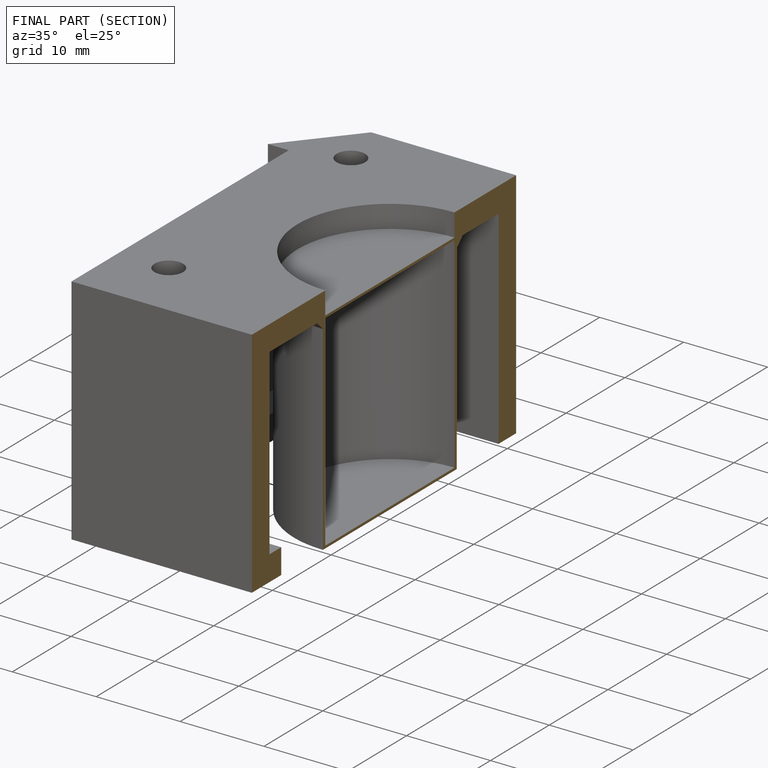
[diagram: finished part — half-section view (interior)]
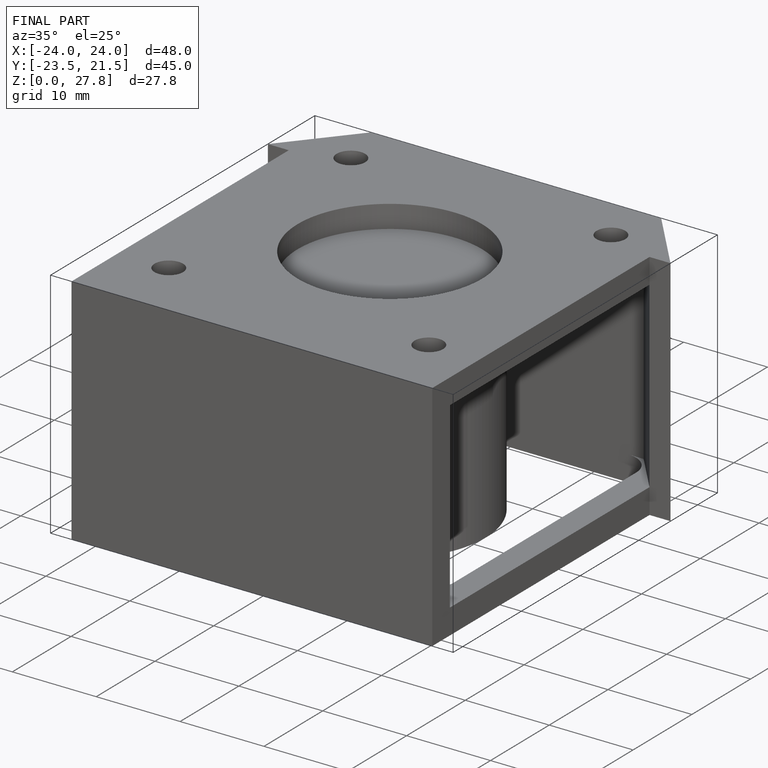
[diagram: finished part — iso view with bounding-box wireframe]
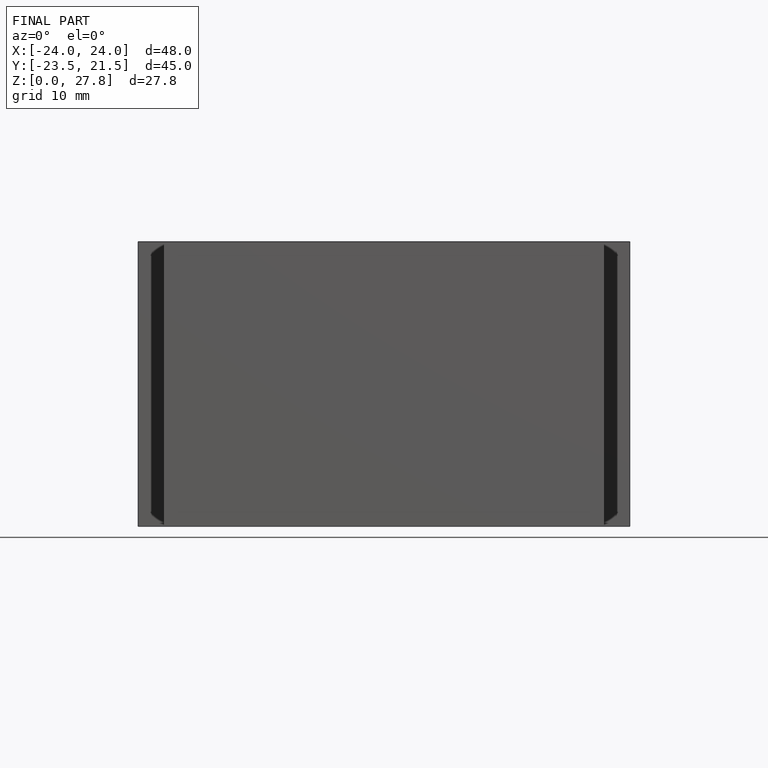
[diagram: finished part — front view with bounding-box wireframe]
